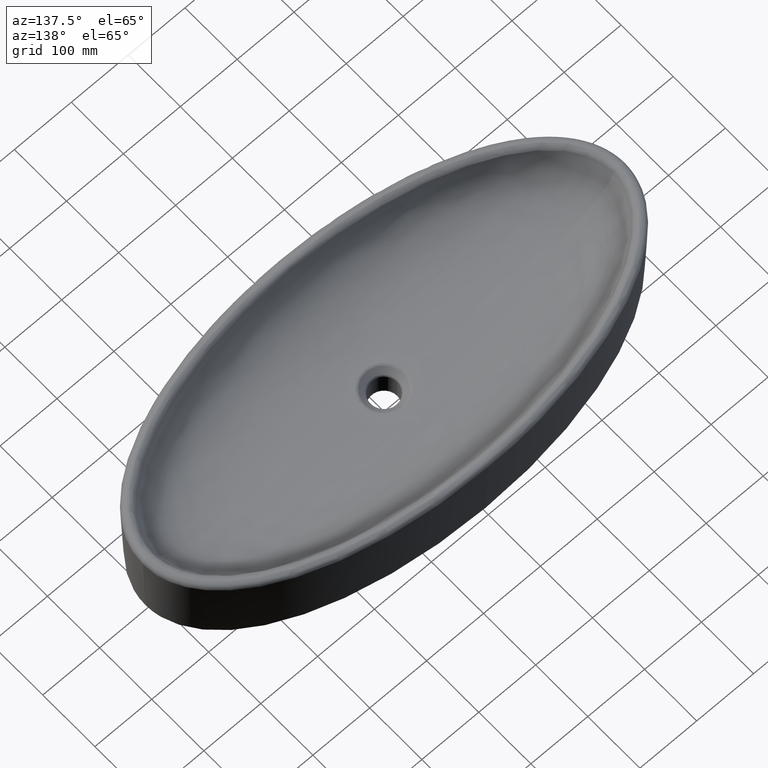
[diagram: clean part render]
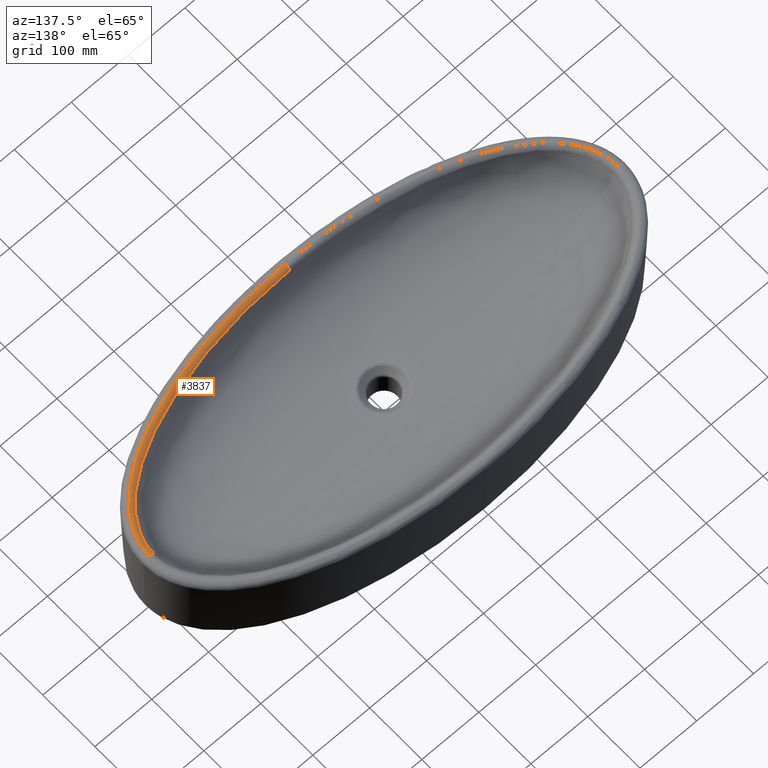
[diagram: same view with one face highlighted and labeled with its STEP entity id]
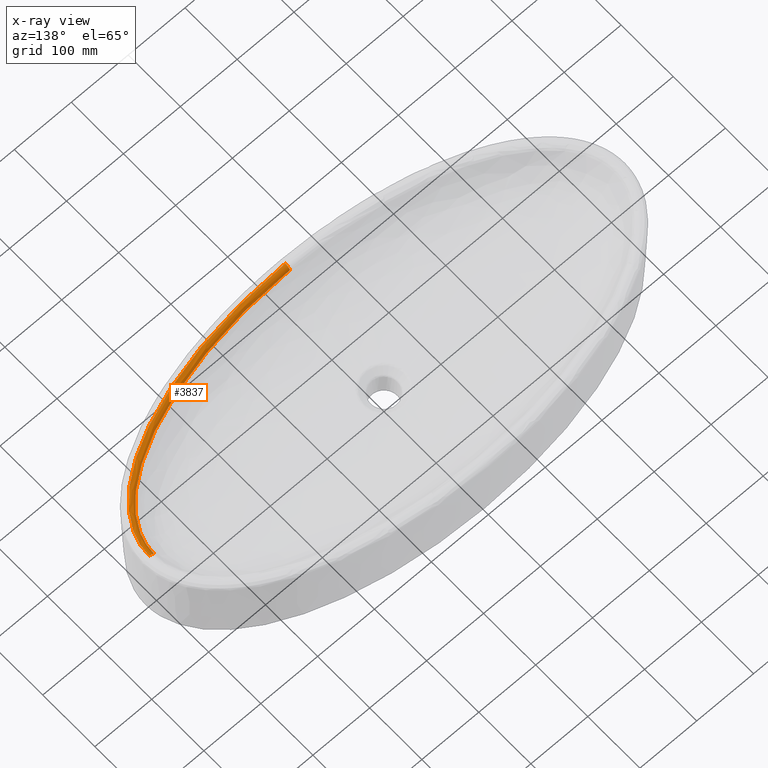
[diagram: x-ray of the same camera — body ghosted, the highlighted face saturated]
A machine part, auxiliary view. The second image highlights one B-rep face of the part: STEP entity #3837.
The next image is the same camera in x-ray: the body ghosted, the highlighted face saturated — about 0% of this face is hidden behind the body in this view.
In plain terms, the highlighted face is a freeform B-spline surface patch.
Its self-contained STEP definition (entity closure, byte-faithful):
#355=CARTESIAN_POINT('',(0.E0,-1.806637705117E2,9.149223017208E1));
#356=CARTESIAN_POINT('',(9.016015105493E0,-1.806637994090E2,9.149225081168E1));
#357=CARTESIAN_POINT('',(2.692418752209E1,-1.804029122497E2,9.149605985886E1));
#358=CARTESIAN_POINT('',(5.345595966621E1,-1.792492534692E2,9.150948190305E1));
#359=CARTESIAN_POINT('',(7.958154851061E1,-1.773500556962E2,9.152777741365E1));
#360=CARTESIAN_POINT('',(1.051170157367E2,-1.747351713965E2,9.154866623315E1));
#361=CARTESIAN_POINT('',(1.299246069127E2,-1.714407449574E2,9.157047246967E1));
#362=CARTESIAN_POINT('',(1.538883429673E2,-1.675068945978E2,9.159204174544E1));
#363=CARTESIAN_POINT('',(1.769073457043E2,-1.629788428010E2,9.161270094254E1));
#364=CARTESIAN_POINT('',(1.988989603696E2,-1.579044947206E2,9.163228271523E1));
#365=CARTESIAN_POINT('',(2.197744522777E2,-1.523408545357E2,9.165097883855E1));
#366=CARTESIAN_POINT('',(2.395173799136E2,-1.463298432965E2,9.166934872507E1));
#367=CARTESIAN_POINT('',(2.579559705549E2,-1.399670631279E2,9.168801109805E1));
#368=CARTESIAN_POINT('',(2.748394217759E2,-1.334128617275E2,9.170746833615E1));
#369=CARTESIAN_POINT('',(2.901534102448E2,-1.267721259024E2,9.172830803371E1));
#370=CARTESIAN_POINT('',(3.040128654873E2,-1.200944216048E2,9.175109300618E1));
#371=CARTESIAN_POINT('',(3.165248280894E2,-1.134222170162E2,9.177615300419E1));
#372=CARTESIAN_POINT('',(3.277832181723E2,-1.067972863749E2,9.180369500297E1));
#373=CARTESIAN_POINT('',(3.378803072910E2,-1.002546887075E2,9.183384661168E1));
#374=CARTESIAN_POINT('',(3.469139696686E2,-9.381683863362E1,9.186654898231E1));
#375=CARTESIAN_POINT('',(3.549831646695E2,-8.749454426445E1,9.190154576706E1));
#376=CARTESIAN_POINT('',(3.621781856730E2,-8.129438628496E1,9.193843500195E1));
#377=CARTESIAN_POINT('',(3.685808488129E2,-7.521942568473E1,9.197680568420E1));
#378=CARTESIAN_POINT('',(3.742651769790E2,-6.926915322005E1,9.201612346739E1));
#379=CARTESIAN_POINT('',(3.792944798430E2,-6.344447788330E1,9.205582042674E1));
#380=CARTESIAN_POINT('',(3.837261580278E2,-5.774366113380E1,9.209536361205E1));
#381=CARTESIAN_POINT('',(3.876151636269E2,-5.215734459489E1,9.213415543215E1));
#382=CARTESIAN_POINT('',(3.910095644710E2,-4.667462352216E1,9.217153311939E1));
#383=CARTESIAN_POINT('',(3.939504903915E2,-4.128467249263E1,9.220691110132E1));
#384=CARTESIAN_POINT('',(3.964737270197E2,-3.597436328371E1,9.223971174470E1));
#385=CARTESIAN_POINT('',(3.986058681174E2,-3.073825495041E1,9.226939447098E1));
#386=CARTESIAN_POINT('',(4.003720028605E2,-2.556633249973E1,9.229543924255E1));
#387=CARTESIAN_POINT('',(4.017979933783E2,-2.042522047382E1,9.231750235342E1));
#388=CARTESIAN_POINT('',(4.028943672107E2,-1.531395899760E1,9.233512976559E1));
#389=CARTESIAN_POINT('',(4.036756465071E2,-1.019024554140E1,9.234802078211E1));
#390=CARTESIAN_POINT('',(4.041405534327E2,-5.074355041258E0,9.235586377500E1));
#391=CARTESIAN_POINT('',(4.042420088452E2,-1.687476374967E0,9.235762424200E1));
#392=CARTESIAN_POINT('',(4.042420120499E2,0.E0,9.235765168712E1));
#670=CARTESIAN_POINT('',(0.E0,-1.806637705117E2,9.149223017208E1));
#852=CARTESIAN_POINT('',(2.097624897411E-6,-1.893622748014E2,8.918224681246E1));
#853=DIRECTION('',(1.E0,2.235707923369E-9,0.E0));
#854=DIRECTION('',(-2.160812773554E-9,9.665004766356E-1,2.566648177356E-1));
#855=AXIS2_PLACEMENT_3D('',#852,#853,#854);
#857=CARTESIAN_POINT('',(4.126632235951E2,2.500884960507E-6,8.918224681320E1));
#858=DIRECTION('',(-2.684595521355E-8,1.E0,0.E0));
#859=DIRECTION('',(-9.356901716755E-1,-2.511949644256E-8,3.528227637638E-1));
#860=AXIS2_PLACEMENT_3D('',#857,#858,#859);
#942=CARTESIAN_POINT('',(-6.527360959373E-13,-1.893622748014E2,
9.818224681247E1));
#944=CARTESIAN_POINT('',(-6.527360959373E-13,-1.893622748014E2,
9.818224681247E1));
#945=CARTESIAN_POINT('',(9.098837620721E0,-1.893622983158E2,9.818224694910E1));
#946=CARTESIAN_POINT('',(2.717726461204E1,-1.890979537502E2,9.818224674912E1));
#947=CARTESIAN_POINT('',(5.396005096503E1,-1.879297562875E2,9.818224682950E1));
#948=CARTESIAN_POINT('',(8.033932134077E1,-1.860072096901E2,9.818224680796E1));
#949=CARTESIAN_POINT('',(1.061306398774E2,-1.833604425698E2,9.818224681373E1));
#950=CARTESIAN_POINT('',(1.311980032580E2,-1.800255323534E2,9.818224681219E1));
#951=CARTESIAN_POINT('',(1.554265137331E2,-1.760422269150E2,9.818224681260E1));
#952=CARTESIAN_POINT('',(1.787162328025E2,-1.714551254131E2,9.818224681249E1));
#953=CARTESIAN_POINT('',(2.009856354292E2,-1.663111301789E2,9.818224681252E1));
#954=CARTESIAN_POINT('',(2.221467292670E2,-1.606660215213E2,9.818224681251E1));
#955=CARTESIAN_POINT('',(2.421846596995E2,-1.545598792828E2,9.818224681251E1));
#956=CARTESIAN_POINT('',(2.609266253609E2,-1.480869338727E2,9.818224681251E1));
#957=CARTESIAN_POINT('',(2.781175663819E2,-1.414075334574E2,9.818224681251E1));
#958=CARTESIAN_POINT('',(2.937411589216E2,-1.346261260576E2,9.818224681251E1));
#959=CARTESIAN_POINT('',(3.079121328761E2,-1.277910827461E2,9.818224681251E1));
#960=CARTESIAN_POINT('',(3.207365781840E2,-1.209439759045E2,9.818224681251E1));
#961=CARTESIAN_POINT('',(3.323072173275E2,-1.141258471012E2,9.818224681251E1));
#962=CARTESIAN_POINT('',(3.427154641039E2,-1.073708088998E2,9.818224681251E1));
#963=CARTESIAN_POINT('',(3.520582270819E2,-1.007003499008E2,9.818224681251E1));
#964=CARTESIAN_POINT('',(3.604331197451E2,-9.412460543933E1,9.818224681251E1));
#965=CARTESIAN_POINT('',(3.679286628147E2,-8.764989589895E1,9.818224681251E1));
#966=CARTESIAN_POINT('',(3.746251459353E2,-8.127886305999E1,9.818224681251E1));
#967=CARTESIAN_POINT('',(3.805946662135E2,-7.501103997147E1,9.818224681251E1));
#968=CARTESIAN_POINT('',(3.858985319663E2,-6.884765253733E1,9.818224681251E1));
#969=CARTESIAN_POINT('',(3.905925102446E2,-6.278696908004E1,9.818224681251E1));
#970=CARTESIAN_POINT('',(3.947297415245E2,-5.681992336378E1,9.818224681252E1));
#971=CARTESIAN_POINT('',(3.983561156964E2,-5.093671505092E1,9.818224681250E1));
#972=CARTESIAN_POINT('',(4.015109103224E2,-4.512743907316E1,9.818224681255E1));
#973=CARTESIAN_POINT('',(4.042280471092E2,-3.938024228315E1,9.818224681237E1));
#974=CARTESIAN_POINT('',(4.065323322059E2,-3.369122254290E1,9.818224681306E1));
#975=CARTESIAN_POINT('',(4.084471426440E2,-2.805257040012E1,9.818224681046E1));
#976=CARTESIAN_POINT('',(4.099974321567E2,-2.243084764690E1,9.818224682017E1));
#977=CARTESIAN_POINT('',(4.111920697974E2,-1.682791703653E1,9.818224678392E1));
#978=CARTESIAN_POINT('',(4.120445805639E2,-1.120285435457E1,9.818224691922E1));
#979=CARTESIAN_POINT('',(4.125523867903E2,-5.579039839925E0,9.818224641426E1));
#980=CARTESIAN_POINT('',(4.126632313665E2,-1.856653591991E0,9.818224767063E1));
#981=CARTESIAN_POINT('',(4.126632235951E2,2.721549885819E-14,9.818224681305E1));
#1569=VERTEX_POINT('',#670);
#1570=VERTEX_POINT('',#942);
#1571=VERTEX_POINT('',#392);
#1572=VERTEX_POINT('',#981);
#3668=CARTESIAN_POINT('',(-4.769287018920E0,-1.805939931312E2,
9.126351727533E1));
#3669=CARTESIAN_POINT('',(-3.179550031528E0,-1.806021172686E2,
9.126339959713E1));
#3670=CARTESIAN_POINT('',(7.367209934258E0,-1.806291042155E2,9.126303148804E1));
#3671=CARTESIAN_POINT('',(2.676311631429E1,-1.803498938527E2,9.126714184522E1));
#3672=CARTESIAN_POINT('',(5.326748925817E1,-1.792016408247E2,9.128060177032E1));
#3673=CARTESIAN_POINT('',(7.931992467101E1,-1.773136561899E2,9.129893541586E1));
#3674=CARTESIAN_POINT('',(1.047953522630E2,-1.747130428694E2,9.131989169623E1));
#3675=CARTESIAN_POINT('',(1.295547601049E2,-1.714348544045E2,9.134179254766E1));
#3676=CARTESIAN_POINT('',(1.534783967664E2,-1.675191704877E2,9.136347355753E1));
#3677=CARTESIAN_POINT('',(1.764650197789E2,-1.630106366421E2,9.138425267765E1));
#3678=CARTESIAN_POINT('',(1.984270418904E2,-1.579581638435E2,9.140394940283E1));
#3679=CARTESIAN_POINT('',(2.192922652008E2,-1.524135109972E2,9.142276358384E1));
#3680=CARTESIAN_POINT('',(2.389635947231E2,-1.464425226850E2,9.144117422911E1));
#3681=CARTESIAN_POINT('',(2.573018468396E2,-1.401383538897E2,9.145980852356E1));
#3682=CARTESIAN_POINT('',(2.741765552878E2,-1.336159630385E2,9.147928776759E1));
#3683=CARTESIAN_POINT('',(2.895428380516E2,-1.269808059972E2,9.150020402479E1));
#3684=CARTESIAN_POINT('',(3.034568391142E2,-1.203037378481E2,9.152307427368E1));
#3685=CARTESIAN_POINT('',(3.160167549760E2,-1.136319074106E2,9.154822343259E1));
#3686=CARTESIAN_POINT('',(3.273212990176E2,-1.070048946815E2,9.157587170894E1));
#3687=CARTESIAN_POINT('',(3.374659776150E2,-1.004555264756E2,9.160616782411E1));
#3688=CARTESIAN_POINT('',(3.465468048770E2,-9.400684760830E1,9.163906692292E1));
#3689=CARTESIAN_POINT('',(3.546587650135E2,-8.767248257913E1,9.167430924632E1));
#3690=CARTESIAN_POINT('',(3.618919940735E2,-8.145958842244E1,9.171149013270E1));
#3691=CARTESIAN_POINT('',(3.683283769490E2,-7.537162845812E1,9.175019591609E1));
#3692=CARTESIAN_POINT('',(3.740411506983E2,-6.940955033635E1,9.178988086121E1));
#3693=CARTESIAN_POINT('',(3.790957815089E2,-6.357268463138E1,9.182997941342E1));
#3694=CARTESIAN_POINT('',(3.835510446846E2,-5.785774363557E1,9.186996453127E1));
#3695=CARTESIAN_POINT('',(3.874603467590E2,-5.225747334571E1,9.190921851268E1));
#3696=CARTESIAN_POINT('',(3.908718265566E2,-4.676149281571E1,9.194706342576E1));
#3697=CARTESIAN_POINT('',(3.938270579622E2,-4.135875963316E1,9.198290195580E1));
#3698=CARTESIAN_POINT('',(3.963609007642E2,-3.603893718856E1,9.201612784606E1));
#3699=CARTESIAN_POINT('',(3.985028418998E2,-3.079153935849E1,9.204622206107E1));
#3700=CARTESIAN_POINT('',(4.002788916917E2,-2.560147132666E1,9.207266948027E1));
#3701=CARTESIAN_POINT('',(4.017099958948E2,-2.045182926317E1,9.209503806798E1));
#3702=CARTESIAN_POINT('',(4.028119581769E2,-1.532198092271E1,9.211294207372E1));
#3703=CARTESIAN_POINT('',(4.035934095092E2,-1.020163604601E1,9.212597533842E1));
#3704=CARTESIAN_POINT('',(4.040588514304E2,-5.094286581962E0,9.213391239448E1));
#3705=CARTESIAN_POINT('',(4.042065180699E2,-2.076700895676E-1,
9.213650171233E1));
#3706=CARTESIAN_POINT('',(4.041222795384E2,2.970281233746E0,9.213512297901E1));
#3707=CARTESIAN_POINT('',(4.040434788310E2,4.453561215634E0,9.213381192427E1));
#3708=CARTESIAN_POINT('',(-4.774557823338E0,-1.816215917295E2,
9.558675043532E1));
#3709=CARTESIAN_POINT('',(-3.183064222250E0,-1.816296667296E2,
9.558664628572E1));
#3710=CARTESIAN_POINT('',(7.375349788203E0,-1.816565017275E2,9.558632120093E1));
#3711=CARTESIAN_POINT('',(2.679275523998E1,-1.813790123860E2,9.558994984409E1));
#3712=CARTESIAN_POINT('',(5.332729024825E1,-1.802361069647E2,9.560182347655E1));
#3713=CARTESIAN_POINT('',(7.941065614472E1,-1.783549606925E2,9.561797813576E1));
#3714=CARTESIAN_POINT('',(1.049180540609E2,-1.757614909174E2,9.563641828919E1));
#3715=CARTESIAN_POINT('',(1.297106386610E2,-1.724898265845E2,9.565566089502E1));
#3716=CARTESIAN_POINT('',(1.536687522863E2,-1.685793587907E2,9.567468160932E1));
#3717=CARTESIAN_POINT('',(1.766911997718E2,-1.640742685802E2,9.569288441995E1));
#3718=CARTESIAN_POINT('',(1.986904820094E2,-1.590232221796E2,9.571011505751E1));
#3719=CARTESIAN_POINT('',(2.195945243032E2,-1.534778892197E2,9.572655194648E1));
#3720=CARTESIAN_POINT('',(2.393063405989E2,-1.475041405590E2,9.574261581733E1));
#3721=CARTESIAN_POINT('',(2.576867603449E2,-1.411952394358E2,9.575885418342E1));
#3722=CARTESIAN_POINT('',(2.746051989785E2,-1.346662960195E2,9.577580659715E1));
#3723=CARTESIAN_POINT('',(2.900166973666E2,-1.280229056511E2,9.579398422507E1));
#3724=CARTESIAN_POINT('',(3.039774681537E2,-1.213359619890E2,9.581382975915E1));
#3725=CARTESIAN_POINT('',(3.165857675486E2,-1.146525345062E2,9.583561614244E1));
#3726=CARTESIAN_POINT('',(3.279403652455E2,-1.080120469899E2,9.585952300970E1));
#3727=CARTESIAN_POINT('',(3.381368657309E2,-1.014470712337E2,9.588566569496E1));
#3728=CARTESIAN_POINT('',(3.472712981216E2,-9.498028848693E1,9.591399056395E1));
#3729=CARTESIAN_POINT('',(3.554385080494E2,-8.862489196672E1,9.594425862003E1));
#3730=CARTESIAN_POINT('',(3.627283535839E2,-8.238759348416E1,9.597610806907E1));
#3731=CARTESIAN_POINT('',(3.692224257683E2,-7.627138676180E1,9.600917223082E1));
#3732=CARTESIAN_POINT('',(3.749934977572E2,-7.027678725339E1,9.604297543600E1));
#3733=CARTESIAN_POINT('',(3.801065029517E2,-6.440273992282E1,9.607703040931E1));
#3734=CARTESIAN_POINT('',(3.846196937706E2,-5.864556788095E1,9.611088796793E1));
#3735=CARTESIAN_POINT('',(3.885858032421E2,-5.299771779830E1,9.614402772577E1));
#3736=CARTESIAN_POINT('',(3.920521534783E2,-4.744868267367E1,9.617588490634E1));
#3737=CARTESIAN_POINT('',(3.950595360342E2,-4.198736283955E1,9.620596864090E1));
#3738=CARTESIAN_POINT('',(3.976419588366E2,-3.660355034527E1,9.623378551838E1));
#3739=CARTESIAN_POINT('',(3.998281287607E2,-3.128694065714E1,9.625891906718E1));
#3740=CARTESIAN_POINT('',(4.016432539605E2,-2.602280861415E1,9.628095852443E1));
#3741=CARTESIAN_POINT('',(4.031075663259E2,-2.079468791843E1,9.629956354447E1));
#3742=CARTESIAN_POINT('',(4.042362182576E2,-1.558241405602E1,9.631443149875E1));
#3743=CARTESIAN_POINT('',(4.050371507153E2,-1.037677303947E1,9.632524203134E1));
#3744=CARTESIAN_POINT('',(4.055144467607E2,-5.182224348427E0,9.633181805459E1));
#3745=CARTESIAN_POINT('',(4.056659318660E2,-2.111670932960E-1,
9.633396903348E1));
#3746=CARTESIAN_POINT('',(4.055795629925E2,3.021376638256E0,9.633281342743E1));
#3747=CARTESIAN_POINT('',(4.054987524492E2,4.529887389400E0,9.633153986504E1));
#3748=CARTESIAN_POINT('',(-4.792625140174E0,-1.851439917795E2,
9.829575439005E1));
#3749=CARTESIAN_POINT('',(-3.195111008647E0,-1.851520611340E2,
9.829569736182E1));
#3750=CARTESIAN_POINT('',(7.403254292668E0,-1.851788845970E2,9.829552022519E1));
#3751=CARTESIAN_POINT('',(2.689434228813E1,-1.849016078581E2,9.829749585050E1));
#3752=CARTESIAN_POINT('',(5.353112854203E1,-1.837584386991E2,9.830394957584E1));
#3753=CARTESIAN_POINT('',(7.971767625090E1,-1.818754902765E2,9.831270761025E1));
#3754=CARTESIAN_POINT('',(1.053298693602E2,-1.792778161387E2,9.832267330018E1));
#3755=CARTESIAN_POINT('',(1.302294115542E2,-1.759987894835E2,9.833303718E1));
#3756=CARTESIAN_POINT('',(1.542970753159E2,-1.720771429410E2,9.834324598409E1));
#3757=CARTESIAN_POINT('',(1.774319845753E2,-1.675564967244E2,9.835298273096E1));
#3758=CARTESIAN_POINT('',(1.995470393837E2,-1.624850210981E2,9.836216968834E1));
#3759=CARTESIAN_POINT('',(2.205705666479E2,-1.569139150002E2,9.837090645803E1));
#3760=CARTESIAN_POINT('',(2.404057865604E2,-1.509086211204E2,9.837941947097E1));
#3761=CARTESIAN_POINT('',(2.589132773156E2,-1.445620915757E2,9.838799922303E1));
#3762=CARTESIAN_POINT('',(2.759616875750E2,-1.379893188954E2,9.839692846795E1));
#3763=CARTESIAN_POINT('',(2.915053465220E2,-1.312958309863E2,9.840647133192E1));
#3764=CARTESIAN_POINT('',(3.056001599821E2,-1.245522897625E2,9.841685196301E1));
#3765=CARTESIAN_POINT('',(3.183440775774E2,-1.178054524983E2,9.842820184596E1));
#3766=CARTESIAN_POINT('',(3.298355719016E2,-1.110943743449E2,9.844060059301E1));
#3767=CARTESIAN_POINT('',(3.401700957187E2,-1.044511009764E2,9.845409133854E1));
#3768=CARTESIAN_POINT('',(3.494433934499E2,-9.789772242194E1,9.846862758949E1));
#3769=CARTESIAN_POINT('',(3.577497515111E2,-9.144689265129E1,9.848406729794E1));
#3770=CARTESIAN_POINT('',(3.651782474562E2,-8.510488949338E1,9.850020787009E1));
#3771=CARTESIAN_POINT('',(3.718097589137E2,-7.887420093966E1,9.851684782534E1));
#3772=CARTESIAN_POINT('',(3.777160721823E2,-7.275502785561E1,9.853373570955E1));
#3773=CARTESIAN_POINT('',(3.829610928575E2,-6.674608359653E1,9.855062100670E1));
#3774=CARTESIAN_POINT('',(3.876021693908E2,-6.084334489093E1,9.856727898251E1));
#3775=CARTESIAN_POINT('',(3.916909062110E2,-5.503913484266E1,9.858345701711E1));
#3776=CARTESIAN_POINT('',(3.952732855375E2,-4.932320108909E1,9.859888913964E1));
#3777=CARTESIAN_POINT('',(3.983888966498E2,-4.368467982749E1,9.861335299233E1));
#3778=CARTESIAN_POINT('',(4.010704534073E2,-3.811393890056E1,9.862663142637E1));
#3779=CARTESIAN_POINT('',(4.033455431642E2,-3.260117378255E1,9.863854910906E1));
#3780=CARTESIAN_POINT('',(4.052382241406E2,-2.713248321596E1,9.864893659103E1));
#3781=CARTESIAN_POINT('',(4.067677357991E2,-2.169220064521E1,9.865765915142E1));
#3782=CARTESIAN_POINT('',(4.079483299511E2,-1.626087388076E1,9.866459873168E1));
#3783=CARTESIAN_POINT('',(4.087869167281E2,-1.083143414625E1,9.866962797816E1));
#3784=CARTESIAN_POINT('',(4.092869989395E2,-5.410030145933E0,9.867267752401E1));
#3785=CARTESIAN_POINT('',(4.094457722806E2,-2.202246107362E-1,
9.867368245978E1));
#3786=CARTESIAN_POINT('',(4.093552705794E2,3.153737815595E0,9.867312910939E1));
#3787=CARTESIAN_POINT('',(4.092705765938E2,4.727711921551E0,9.867229261328E1));
#3788=CARTESIAN_POINT('',(-4.815409837040E0,-1.895860874376E2,
9.817914829154E1));
#3789=CARTESIAN_POINT('',(-3.210303449037E0,-1.895941971628E2,
9.817915090629E1));
#3790=CARTESIAN_POINT('',(7.438445436236E0,-1.896211546630E2,9.817916048392E1));
#3791=CARTESIAN_POINT('',(2.702245094533E1,-1.893424870388E2,9.817905096484E1));
#3792=CARTESIAN_POINT('',(5.378785410455E1,-1.881935607330E2,9.817867477953E1));
#3793=CARTESIAN_POINT('',(8.010369531305E1,-1.863009755116E2,9.817812608723E1));
#3794=CARTESIAN_POINT('',(1.058466473901E2,-1.836896291611E2,9.817744848902E1));
#3795=CARTESIAN_POINT('',(1.308790999623E2,-1.803926459266E2,9.817668344774E1));
#3796=CARTESIAN_POINT('',(1.550823996784E2,-1.764484245465E2,9.817586913440E1));
#3797=CARTESIAN_POINT('',(1.783561186660E2,-1.719001788361E2,9.817503581906E1));
#3798=CARTESIAN_POINT('',(2.006136886593E2,-1.667955536636E2,9.817419838295E1));
#3799=CARTESIAN_POINT('',(2.217839369830E2,-1.611851063352E2,9.817335545583E1));
#3800=CARTESIAN_POINT('',(2.417702951634E2,-1.551335883897E2,9.817249003209E1));
#3801=CARTESIAN_POINT('',(2.604329381728E2,-1.487333605691E2,9.817157317429E1));
#3802=CARTESIAN_POINT('',(2.776394423E2,-1.420990809860E2,9.817057061911E1));
#3803=CARTESIAN_POINT('',(2.933431087208E2,-1.353360333575E2,9.816944377767E1));
#3804=CARTESIAN_POINT('',(3.075992981604E2,-1.285144811619E2,9.816815172270E1));
#3805=CARTESIAN_POINT('',(3.205054244554E2,-1.216807762280E2,9.816665825331E1));
#3806=CARTESIAN_POINT('',(3.321594425390E2,-1.148735574870E2,9.816492823624E1));
#3807=CARTESIAN_POINT('',(3.426564714651E2,-1.081243086587E2,9.816292607932E1));
#3808=CARTESIAN_POINT('',(3.520917985623E2,-1.014545652735E2,9.816062515769E1));
#3809=CARTESIAN_POINT('',(3.605589804570E2,-9.487657522281E1,9.815801320606E1));
#3810=CARTESIAN_POINT('',(3.681461606724E2,-8.839638765775E1,9.815509197443E1));
#3811=CARTESIAN_POINT('',(3.749334028730E2,-8.201617485179E1,9.815186952375E1));
#3812=CARTESIAN_POINT('',(3.809914248407E2,-7.573608136427E1,9.814837250226E1));
#3813=CARTESIAN_POINT('',(3.863830689476E2,-6.955484651166E1,9.814463976186E1));
#3814=CARTESIAN_POINT('',(3.911648028219E2,-6.346829833058E1,9.814071724048E1));
#3815=CARTESIAN_POINT('',(3.953871518722E2,-5.746886737279E1,9.813667079807E1));
#3816=CARTESIAN_POINT('',(3.990948344029E2,-5.154682274167E1,9.813258530326E1));
#3817=CARTESIAN_POINT('',(4.023263550921E2,-4.569172414790E1,9.812854890461E1));
#3818=CARTESIAN_POINT('',(4.051132701917E2,-3.989470488549E1,9.812466059641E1));
#3819=CARTESIAN_POINT('',(4.074822086900E2,-3.414655526711E1,9.812101693025E1));
#3820=CARTESIAN_POINT('',(4.094562453226E2,-2.843428376341E1,9.811771881823E1));
#3821=CARTESIAN_POINT('',(4.110537923440E2,-2.274302815194E1,9.811485915025E1));
#3822=CARTESIAN_POINT('',(4.122883543697E2,-1.705397463169E1,9.811252335192E1));
#3823=CARTESIAN_POINT('',(4.131659308400E2,-1.136230930615E1,9.811079796648E1));
#3824=CARTESIAN_POINT('',(4.136895420066E2,-5.675836430257E0,9.810973251946E1));
#3825=CARTESIAN_POINT('',(4.138558142851E2,-2.307924066944E-1,
9.810939618215E1));
#3826=CARTESIAN_POINT('',(4.137610253404E2,3.308177035541E0,9.810955490614E1));
#3827=CARTESIAN_POINT('',(4.136723108587E2,4.958573941039E0,9.810935960803E1));
#3828=(BOUNDED_SURFACE()B_SPLINE_SURFACE(3,3,((#3668,#3669,#3670,#3671,#3672,
#3673,#3674,#3675,#3676,#3677,#3678,#3679,#3680,#3681,#3682,#3683,#3684,#3685,
#3686,#3687,#3688,#3689,#3690,#3691,#3692,#3693,#3694,#3695,#3696,#3697,#3698,
#3699,#3700,#3701,#3702,#3703,#3704,#3705,#3706,#3707),(#3708,#3709,#3710,#3711,
#3712,#3713,#3714,#3715,#3716,#3717,#3718,#3719,#3720,#3721,#3722,#3723,#3724,
#3725,#3726,#3727,#3728,#3729,#3730,#3731,#3732,#3733,#3734,#3735,#3736,#3737,
#3738,#3739,#3740,#3741,#3742,#3743,#3744,#3745,#3746,#3747),(#3748,#3749,#3750,
#3751,#3752,#3753,#3754,#3755,#3756,#3757,#3758,#3759,#3760,#3761,#3762,#3763,
#3764,#3765,#3766,#3767,#3768,#3769,#3770,#3771,#3772,#3773,#3774,#3775,#3776,
#3777,#3778,#3779,#3780,#3781,#3782,#3783,#3784,#3785,#3786,#3787),(#3788,#3789,
#3790,#3791,#3792,#3793,#3794,#3795,#3796,#3797,#3798,#3799,#3800,#3801,#3802,
#3803,#3804,#3805,#3806,#3807,#3808,#3809,#3810,#3811,#3812,#3813,#3814,#3815,
#3816,#3817,#3818,#3819,#3820,#3821,#3822,#3823,#3824,#3825,#3826,#3827)),
.UNSPECIFIED.,.F.,.F.,.F.)B_SPLINE_SURFACE_WITH_KNOTS((4,4),(4,1,1,1,1,1,1,1,1,
1,1,1,1,1,1,1,1,1,1,1,1,1,1,1,1,1,1,1,1,1,1,1,1,1,1,1,1,4),(0.E0,1.E0),(
-9.876035723403E-3,0.E0,5.564295796969E-2,1.106116570479E-1,1.648001496734E-1,
2.179273758006E-1,2.697440568696E-1,3.200495873441E-1,3.686752089177E-1,
4.154777399381E-1,4.603337414637E-1,5.031615798192E-1,5.436432616313E-1,
5.813503157053E-1,6.161957590975E-1,6.483601909790E-1,6.780537251256E-1,
7.054613390256E-1,7.307626647785E-1,7.541482227241E-1,7.758131574554E-1,
7.959401265274E-1,8.146966978314E-1,8.322347870098E-1,8.486867803842E-1,
8.641758896135E-1,8.788244381607E-1,8.927459352510E-1,9.060435766763E-1,
9.188108851801E-1,9.311239554284E-1,9.430649821448E-1,9.547350374385E-1,
9.662050449285E-1,9.775679014870E-1,9.888367053408E-1,1.E0,1.009793926552E0),
.UNSPECIFIED.)GEOMETRIC_REPRESENTATION_ITEM()RATIONAL_B_SPLINE_SURFACE(((
1.125862523788E0,1.125862523788E0,1.125862523788E0,1.125862523788E0,
1.125862523788E0,1.125862523788E0,1.125862523788E0,1.125862523788E0,
1.125862523788E0,1.125862523788E0,1.125862523788E0,1.125862523788E0,
1.125862523788E0,1.125862523788E0,1.125862523788E0,1.125862523788E0,
1.125862523788E0,1.125862523788E0,1.125862523788E0,1.125862523788E0,
1.125862523788E0,1.125862523788E0,1.125862523788E0,1.125862523788E0,
1.125862523788E0,1.125862523788E0,1.125862523788E0,1.125862523788E0,
1.125862523788E0,1.125862523788E0,1.125862523788E0,1.125862523788E0,
1.125862523788E0,1.125862523788E0,1.125862523788E0,1.125862523788E0,
1.125862523788E0,1.125862523788E0,1.125862523788E0,1.125862523788E0),(
9.580458254041E-1,9.580458254041E-1,9.580458254041E-1,9.580458254041E-1,
9.580458254041E-1,9.580458254041E-1,9.580458254041E-1,9.580458254041E-1,
9.580458254041E-1,9.580458254041E-1,9.580458254041E-1,9.580458254041E-1,
9.580458254041E-1,9.580458254041E-1,9.580458254041E-1,9.580458254041E-1,
9.580458254041E-1,9.580458254041E-1,9.580458254041E-1,9.580458254041E-1,
9.580458254041E-1,9.580458254041E-1,9.580458254041E-1,9.580458254041E-1,
9.580458254041E-1,9.580458254041E-1,9.580458254041E-1,9.580458254041E-1,
9.580458254041E-1,9.580458254041E-1,9.580458254041E-1,9.580458254041E-1,
9.580458254041E-1,9.580458254041E-1,9.580458254041E-1,9.580458254041E-1,
9.580458254041E-1,9.580458254041E-1,9.580458254041E-1,9.580458254041E-1),(
9.580458254041E-1,9.580458254041E-1,9.580458254041E-1,9.580458254041E-1,
9.580458254041E-1,9.580458254041E-1,9.580458254041E-1,9.580458254041E-1,
9.580458254041E-1,9.580458254041E-1,9.580458254041E-1,9.580458254041E-1,
9.580458254041E-1,9.580458254041E-1,9.580458254041E-1,9.580458254041E-1,
9.580458254041E-1,9.580458254041E-1,9.580458254041E-1,9.580458254041E-1,
9.580458254041E-1,9.580458254041E-1,9.580458254041E-1,9.580458254041E-1,
9.580458254041E-1,9.580458254041E-1,9.580458254041E-1,9.580458254041E-1,
9.580458254041E-1,9.580458254041E-1,9.580458254041E-1,9.580458254041E-1,
9.580458254041E-1,9.580458254041E-1,9.580458254041E-1,9.580458254041E-1,
9.580458254041E-1,9.580458254041E-1,9.580458254041E-1,9.580458254041E-1),(
1.125862523788E0,1.125862523788E0,1.125862523788E0,1.125862523788E0,
1.125862523788E0,1.125862523788E0,1.125862523788E0,1.125862523788E0,
1.125862523788E0,1.125862523788E0,1.125862523788E0,1.125862523788E0,
1.125862523788E0,1.125862523788E0,1.125862523788E0,1.125862523788E0,
1.125862523788E0,1.125862523788E0,1.125862523788E0,1.125862523788E0,
1.125862523788E0,1.125862523788E0,1.125862523788E0,1.125862523788E0,
1.125862523788E0,1.125862523788E0,1.125862523788E0,1.125862523788E0,
1.125862523788E0,1.125862523788E0,1.125862523788E0,1.125862523788E0,
1.125862523788E0,1.125862523788E0,1.125862523788E0,1.125862523788E0,
1.125862523788E0,1.125862523788E0,1.125862523788E0,1.125862523788E0)))REPRESENTATION_ITEM('')SURFACE());
#3829=ORIENTED_EDGE('',*,*,#2105,.T.);
#3831=ORIENTED_EDGE('',*,*,#3830,.T.);
#3833=ORIENTED_EDGE('',*,*,#3832,.F.);
#3834=ORIENTED_EDGE('',*,*,#3659,.F.);
#3835=EDGE_LOOP('',(#3829,#3831,#3833,#3834));
#3836=FACE_OUTER_BOUND('',#3835,.F.);
#3837=ADVANCED_FACE('',(#3836),#3828,.T.);
#393=B_SPLINE_CURVE_WITH_KNOTS('',3,(#355,#356,#357,#358,#359,#360,#361,#362,
#363,#364,#365,#366,#367,#368,#369,#370,#371,#372,#373,#374,#375,#376,#377,#378,
#379,#380,#381,#382,#383,#384,#385,#386,#387,#388,#389,#390,#391,#392),
.UNSPECIFIED.,.F.,.F.,(4,1,1,1,1,1,1,1,1,1,1,1,1,1,1,1,1,1,1,1,1,1,1,1,1,1,1,1,
1,1,1,1,1,1,1,4),(0.E0,2.857142857143E-2,5.714285714286E-2,8.571428571429E-2,
1.142857142857E-1,1.428571428571E-1,1.714285714286E-1,2.E-1,2.285714285714E-1,
2.571428571429E-1,2.857142857143E-1,3.142857142857E-1,3.428571428571E-1,
3.714285714286E-1,4.E-1,4.285714285714E-1,4.571428571429E-1,4.857142857143E-1,
5.142857142857E-1,5.428571428571E-1,5.714285714286E-1,6.E-1,6.285714285714E-1,
6.571428571429E-1,6.857142857143E-1,7.142857142857E-1,7.428571428571E-1,
7.714285714286E-1,8.E-1,8.285714285714E-1,8.571428571429E-1,8.857142857143E-1,
9.142857142857E-1,9.428571428571E-1,9.714285714286E-1,1.E0),.UNSPECIFIED.);
#856=CIRCLE('',#855,8.999999999993E0);
#861=CIRCLE('',#860,9.000000000129E0);
#982=B_SPLINE_CURVE_WITH_KNOTS('',3,(#944,#945,#946,#947,#948,#949,#950,#951,
#952,#953,#954,#955,#956,#957,#958,#959,#960,#961,#962,#963,#964,#965,#966,#967,
#968,#969,#970,#971,#972,#973,#974,#975,#976,#977,#978,#979,#980,#981),
.UNSPECIFIED.,.F.,.F.,(4,1,1,1,1,1,1,1,1,1,1,1,1,1,1,1,1,1,1,1,1,1,1,1,1,1,1,1,
1,1,1,1,1,1,1,4),(0.E0,2.857142857143E-2,5.714285714286E-2,8.571428571429E-2,
1.142857142857E-1,1.428571428571E-1,1.714285714286E-1,2.E-1,2.285714285714E-1,
2.571428571429E-1,2.857142857143E-1,3.142857142857E-1,3.428571428571E-1,
3.714285714286E-1,4.E-1,4.285714285714E-1,4.571428571429E-1,4.857142857143E-1,
5.142857142857E-1,5.428571428571E-1,5.714285714286E-1,6.E-1,6.285714285714E-1,
6.571428571429E-1,6.857142857143E-1,7.142857142857E-1,7.428571428571E-1,
7.714285714286E-1,8.E-1,8.285714285714E-1,8.571428571429E-1,8.857142857143E-1,
9.142857142857E-1,9.428571428571E-1,9.714285714286E-1,1.E0),.UNSPECIFIED.);
#2105=EDGE_CURVE('',#1569,#1571,#393,.T.);
#3659=EDGE_CURVE('',#1569,#1570,#856,.T.);
#3830=EDGE_CURVE('',#1571,#1572,#861,.T.);
#3832=EDGE_CURVE('',#1570,#1572,#982,.T.);